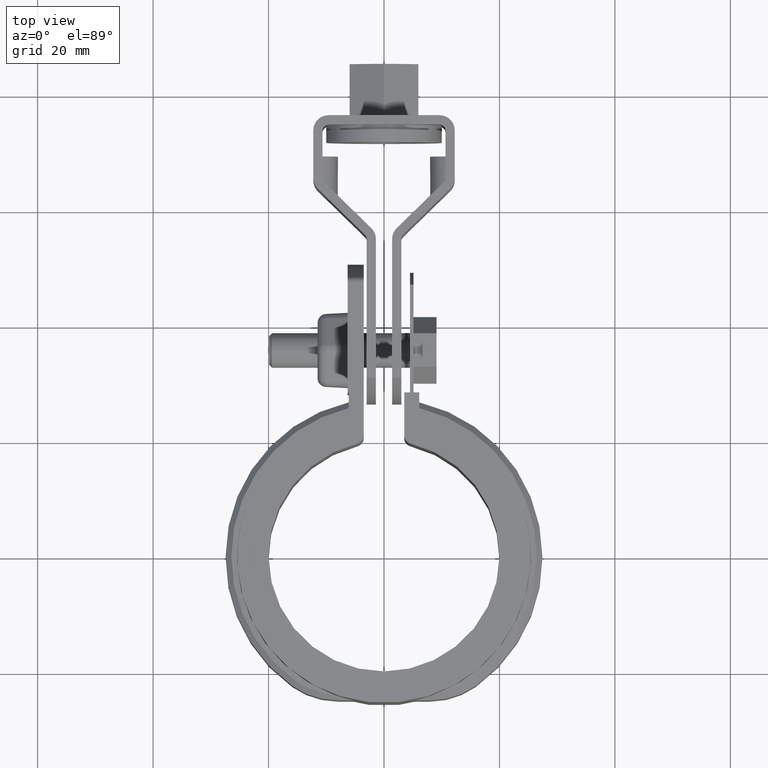
[diagram: clean part render]
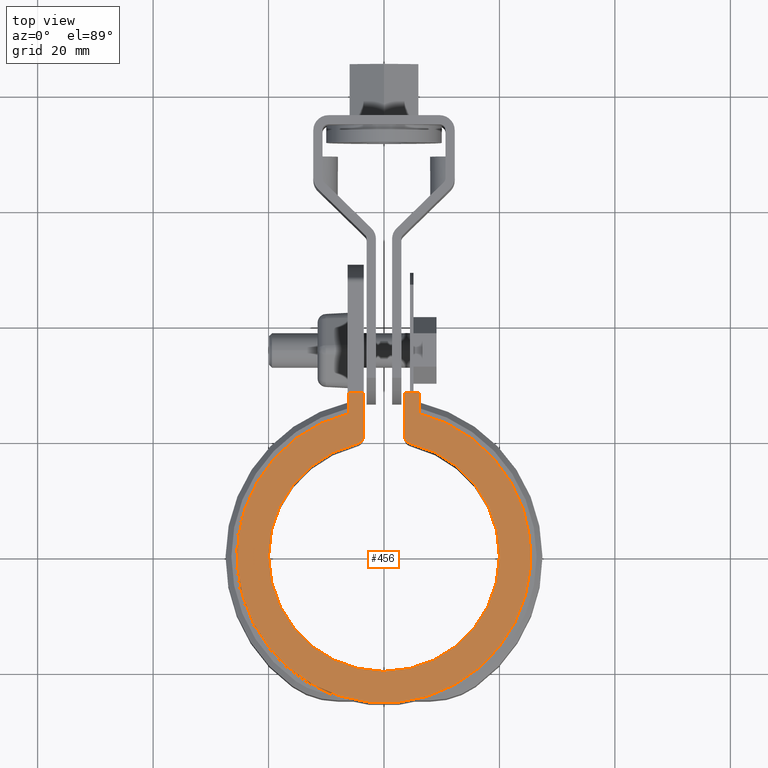
[diagram: same view with one face highlighted and labeled with its STEP entity id]
A machine part, top view. The second image highlights one B-rep face of the part: STEP entity #456.
In plain terms, the highlighted planar face has unit normal (0, 0, -1).
Its self-contained STEP definition (entity closure, byte-faithful):
#456 = ADVANCED_FACE( '', ( #896 ), #897, .F. );
#896 = FACE_OUTER_BOUND( '', #2005, .T. );
#897 = PLANE( '', #2006 );
#2005 = EDGE_LOOP( '', ( #4247, #4248, #4249, #4250, #4251, #4252, #4253, #4254, #4255, #4256 ) );
#2006 = AXIS2_PLACEMENT_3D( '', #4257, #4258, #4259 );
#4247 = ORIENTED_EDGE( '', *, *, #6749, .F. );
#4248 = ORIENTED_EDGE( '', *, *, #6901, .T. );
#4249 = ORIENTED_EDGE( '', *, *, #6888, .T. );
#4250 = ORIENTED_EDGE( '', *, *, #6892, .T. );
#4251 = ORIENTED_EDGE( '', *, *, #6931, .F. );
#4252 = ORIENTED_EDGE( '', *, *, #6754, .T. );
#4253 = ORIENTED_EDGE( '', *, *, #6932, .T. );
#4254 = ORIENTED_EDGE( '', *, *, #6933, .F. );
#4255 = ORIENTED_EDGE( '', *, *, #6934, .T. );
#4256 = ORIENTED_EDGE( '', *, *, #6935, .T. );
#4257 = CARTESIAN_POINT( '', ( -6.50000000000000, 23.9330315672712, 1.50000000000000 ) );
#4258 = DIRECTION( '', ( 0.000000000000000, 0.000000000000000, -1.00000000000000 ) );
#4259 = DIRECTION( '', ( 1.00000000000000, -7.50630429541387E-017, 0.000000000000000 ) );
#6749 = EDGE_CURVE( '', #7798, #7794, #7800, .T. );
#6754 = EDGE_CURVE( '', #7809, #7810, #7811, .T. );
#6888 = EDGE_CURVE( '', #8051, #8049, #8052, .T. );
#6892 = EDGE_CURVE( '', #8049, #8056, #8058, .T. );
#6901 = EDGE_CURVE( '', #7798, #8051, #8073, .T. );
#6931 = EDGE_CURVE( '', #7809, #8056, #8115, .T. );
#6932 = EDGE_CURVE( '', #7810, #8116, #8117, .F. );
#6933 = EDGE_CURVE( '', #8118, #8116, #8119, .F. );
#6934 = EDGE_CURVE( '', #8118, #8120, #8121, .F. );
#6935 = EDGE_CURVE( '', #8120, #7794, #8122, .T. );
#7794 = VERTEX_POINT( '', #10234 );
#7798 = VERTEX_POINT( '', #10240 );
#7800 = LINE( '', #10243, #10244 );
#7809 = VERTEX_POINT( '', #10257 );
#7810 = VERTEX_POINT( '', #10258 );
#7811 = LINE( '', #10259, #10260 );
#8049 = VERTEX_POINT( '', #11331 );
#8051 = VERTEX_POINT( '', #11334 );
#8052 = CIRCLE( '', #11335, 25.4450000000000 );
#8056 = VERTEX_POINT( '', #11341 );
#8058 = LINE( '', #11344, #11345 );
#8073 = LINE( '', #11370, #11371 );
#8115 = LINE( '', #11434, #11435 );
#8116 = VERTEX_POINT( '', #11436 );
#8117 = CIRCLE( '', #11437, 1.50000000000000 );
#8118 = VERTEX_POINT( '', #11438 );
#8119 = CIRCLE( '', #11439, 20.0000000000000 );
#8120 = VERTEX_POINT( '', #11440 );
#8121 = CIRCLE( '', #11441, 1.50000000000000 );
#8122 = LINE( '', #11442, #11443 );
#10234 = CARTESIAN_POINT( '', ( -3.50000000000000, 28.3515100161045, 1.50000000000000 ) );
#10240 = CARTESIAN_POINT( '', ( -6.10000000000002, 28.3515100161045, 1.50000000000000 ) );
#10243 = CARTESIAN_POINT( '', ( -6.50000000000000, 28.3515100161045, 1.50000000000000 ) );
#10244 = VECTOR( '', #13186, 1000.00000000000 );
#10257 = CARTESIAN_POINT( '', ( 3.50000000000001, 28.3515100161045, 1.50000000000000 ) );
#10258 = CARTESIAN_POINT( '', ( 3.50000000000000, 20.9105236663265, 1.50000000000000 ) );
#10259 = CARTESIAN_POINT( '', ( 3.50000000000000, 28.8400000000000, 1.50000000000000 ) );
#10260 = VECTOR( '', #13191, 1000.00000000000 );
#11331 = CARTESIAN_POINT( '', ( 6.09999999999994, 24.7029962757557, 1.50000000000000 ) );
#11334 = CARTESIAN_POINT( '', ( -6.10000000000002, 24.7029962757557, 1.50000000000000 ) );
#11335 = AXIS2_PLACEMENT_3D( '', #13328, #13329, #13330 );
#11341 = CARTESIAN_POINT( '', ( 6.09999999999997, 28.3515100161045, 1.50000000000000 ) );
#11344 = CARTESIAN_POINT( '', ( 6.09999999999997, 24.7029962757557, 1.50000000000000 ) );
#11345 = VECTOR( '', #13334, 1000.00000000000 );
#11370 = CARTESIAN_POINT( '', ( -6.10000000000002, 28.8400000000000, 1.50000000000000 ) );
#11371 = VECTOR( '', #13345, 1000.00000000000 );
#11434 = CARTESIAN_POINT( '', ( -6.50000000000000, 28.3515100161045, 1.50000000000000 ) );
#11435 = VECTOR( '', #13397, 1000.00000000000 );
#11436 = CARTESIAN_POINT( '', ( 4.65116279069768, 19.4516499221642, 1.50000000000000 ) );
#11437 = AXIS2_PLACEMENT_3D( '', #13398, #13399, #13400 );
#11438 = CARTESIAN_POINT( '', ( -4.65116279069768, 19.4516499221642, 1.50000000000000 ) );
#11439 = AXIS2_PLACEMENT_3D( '', #13401, #13402, #13403 );
#11440 = CARTESIAN_POINT( '', ( -3.50000000000000, 20.9105236663265, 1.50000000000000 ) );
#11441 = AXIS2_PLACEMENT_3D( '', #13404, #13405, #13406 );
#11442 = CARTESIAN_POINT( '', ( -3.50000000000000, 19.6862902802940, 1.50000000000000 ) );
#11443 = VECTOR( '', #13407, 1000.00000000000 );
#13186 = DIRECTION( '', ( 1.00000000000000, 0.000000000000000, 0.000000000000000 ) );
#13191 = DIRECTION( '', ( -6.07153216591882E-017, -1.00000000000000, 0.000000000000000 ) );
#13328 = CARTESIAN_POINT( '', ( -4.33680868994202E-015, 0.000000000000000, 1.50000000000000 ) );
#13329 = DIRECTION( '', ( 0.000000000000000, 0.000000000000000, 1.00000000000000 ) );
#13330 = DIRECTION( '', ( 1.00000000000000, -6.07153216591882E-017, 0.000000000000000 ) );
#13334 = DIRECTION( '', ( 6.07153216591882E-017, 1.00000000000000, 0.000000000000000 ) );
#13345 = DIRECTION( '', ( -6.07153216591882E-017, -1.00000000000000, 0.000000000000000 ) );
#13397 = DIRECTION( '', ( 1.00000000000000, 0.000000000000000, 0.000000000000000 ) );
#13398 = CARTESIAN_POINT( '', ( 5.00000000000000, 20.9105236663265, 1.50000000000000 ) );
#13399 = DIRECTION( '', ( 0.000000000000000, 0.000000000000000, -1.00000000000000 ) );
#13400 = DIRECTION( '', ( -1.00000000000000, 0.000000000000000, 0.000000000000000 ) );
#13401 = CARTESIAN_POINT( '', ( 0.000000000000000, 0.000000000000000, 1.50000000000000 ) );
#13402 = DIRECTION( '', ( 0.000000000000000, 0.000000000000000, -1.00000000000000 ) );
#13403 = DIRECTION( '', ( -1.00000000000000, 0.000000000000000, 0.000000000000000 ) );
#13404 = CARTESIAN_POINT( '', ( -5.00000000000000, 20.9105236663265, 1.50000000000000 ) );
#13405 = DIRECTION( '', ( 0.000000000000000, 0.000000000000000, -1.00000000000000 ) );
#13406 = DIRECTION( '', ( -1.00000000000000, 0.000000000000000, 0.000000000000000 ) );
#13407 = DIRECTION( '', ( 6.07153216591882E-017, 1.00000000000000, 0.000000000000000 ) );